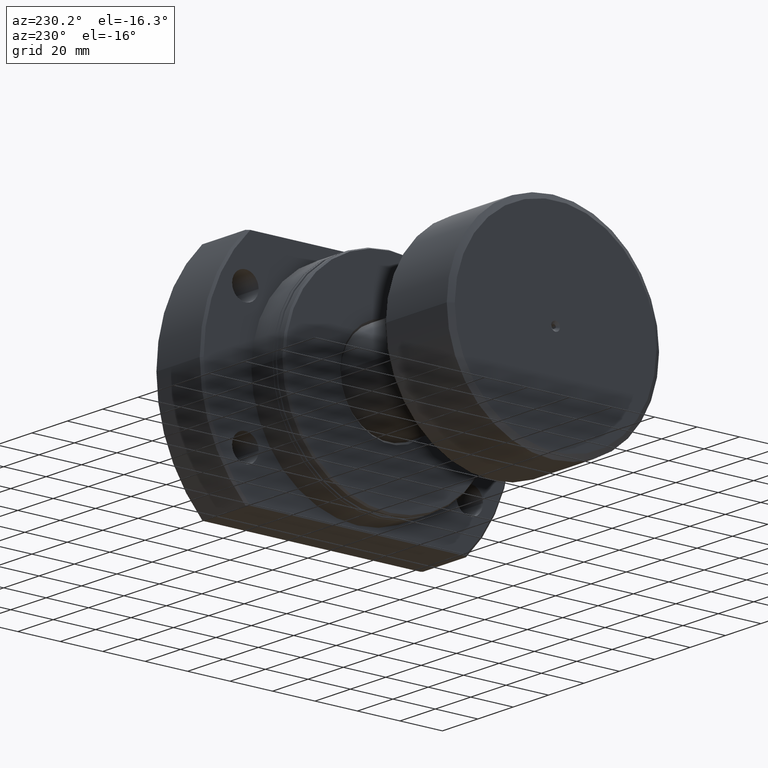
[diagram: clean part render]
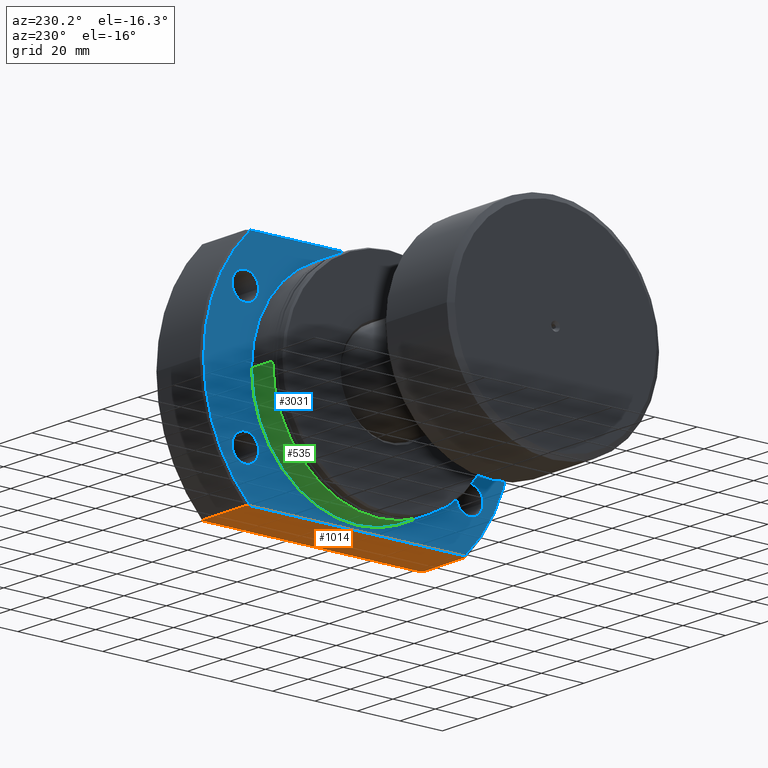
[diagram: same view with three faces highlighted in distinct colors, each labeled with its STEP entity id]
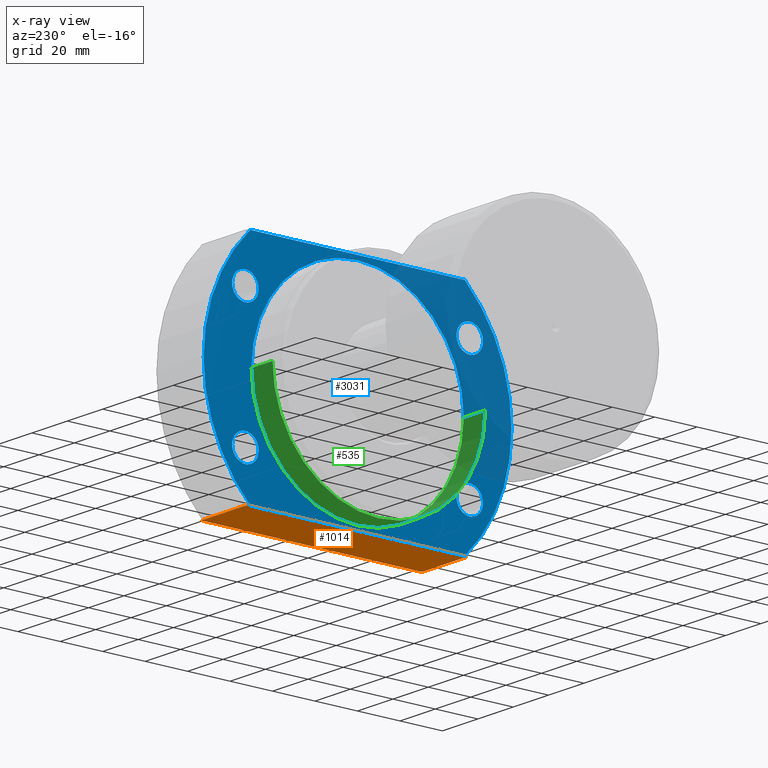
[diagram: x-ray of the same camera — body ghosted, the three highlighted faces saturated]
A machine part, auxiliary view with three faces highlighted in distinct colors.
The next image is the same camera in x-ray (body ghosted, the three faces saturated) — at least one of them is partly hidden behind the body in this view.
Their STEP definitions:

[orange] entity #1014 — the highlighted planar face has unit normal (0, 0, 1).
#72 = DIRECTION ( 'NONE',  ( 1.000000000000000000, -2.886466111666351885E-14, -0.000000000000000000 ) ) ;
#127 = VERTEX_POINT ( 'NONE', #3254 ) ;
#150 = ORIENTED_EDGE ( 'NONE', *, *, #1788, .F. ) ;
#172 = VERTEX_POINT ( 'NONE', #480 ) ;
#180 = EDGE_CURVE ( 'NONE', #1849, #777, #822, .T. ) ;
#188 = LINE ( 'NONE', #3641, #1297 ) ;
#190 = CARTESIAN_POINT ( 'NONE',  ( 19.16504727819932796, -51.47073513786417465, -52.00000000000000000 ) ) ;
#406 = LINE ( 'NONE', #700, #1348 ) ;
#417 = ORIENTED_EDGE ( 'NONE', *, *, #1956, .T. ) ;
#480 = CARTESIAN_POINT ( 'NONE',  ( 44.00000000000007816, -51.94468211472653252, -51.99999999999999289 ) ) ;
#528 = CARTESIAN_POINT ( 'NONE',  ( 19.16511005864717632, 51.47082397011282495, -52.00000000000000000 ) ) ;
#580 = CARTESIAN_POINT ( 'NONE',  ( 18.50000000000000355, 50.51979809935892263, -52.00000000000000000 ) ) ;
#696 = CARTESIAN_POINT ( 'NONE',  ( -6.175615574477433256E-13, 51.94468211472779728, -52.00000000000000000 ) ) ;
#700 = CARTESIAN_POINT ( 'NONE',  ( 18.50000000000000711, -50.00000000000000000, -52.00000000000000000 ) ) ;
#777 = VERTEX_POINT ( 'NONE', #1433 ) ;
#822 = LINE ( 'NONE', #2462, #1808 ) ;
#847 = VERTEX_POINT ( 'NONE', #1472 ) ;
#876 = CARTESIAN_POINT ( 'NONE',  ( 44.49999999999999289, -51.23475382979800230, -52.00000000000000000 ) ) ;
#883 = EDGE_CURVE ( 'NONE', #777, #127, #3304, .T. ) ;
#897 = ORIENTED_EDGE ( 'NONE', *, *, #3483, .F. ) ;
#932 = VECTOR ( 'NONE', #72, 1000.000000000000000 ) ;
#971 = DIRECTION ( 'NONE',  ( 0.000000000000000000, 0.000000000000000000, 1.000000000000000000 ) ) ;
#1014 = ADVANCED_FACE ( 'NONE', ( #3021 ), #3518, .F. ) ;
#1126 = VERTEX_POINT ( 'NONE', #3041 ) ;
#1129 = EDGE_CURVE ( 'NONE', #1126, #3136, #2027, .T. ) ;
#1297 = VECTOR ( 'NONE', #2750, 1000.000000000000000 ) ;
#1348 = VECTOR ( 'NONE', #1838, 1000.000000000000000 ) ;
#1387 = CARTESIAN_POINT ( 'NONE',  ( 18.50000000000000711, -50.51979809935892263, -52.00000000000000000 ) ) ;
#1433 = CARTESIAN_POINT ( 'NONE',  ( 44.49999999999998579, 51.23475382979800941, -52.00000000000000000 ) ) ;
#1472 = CARTESIAN_POINT ( 'NONE',  ( 19.49999999999999289, -51.94468211472582198, -51.99999999999999289 ) ) ;
#1513 = LINE ( 'NONE', #3248, #932 ) ;
#1577 = VERTEX_POINT ( 'NONE', #3349 ) ;
#1631 = DIRECTION ( 'NONE',  ( -5.504030557965630938E-17, 1.000000000000000000, -0.000000000000000000 ) ) ;
#1633 = ORIENTED_EDGE ( 'NONE', *, *, #883, .F. ) ;
#1696 = EDGE_CURVE ( 'NONE', #1577, #847, #2068, .T. ) ;
#1788 = EDGE_CURVE ( 'NONE', #172, #1849, #2725, .T. ) ;
#1795 = CARTESIAN_POINT ( 'NONE',  ( 44.00000000000007816, 51.94468211472651831, -52.00000000000000711 ) ) ;
#1808 = VECTOR ( 'NONE', #1631, 1000.000000000000000 ) ;
#1838 = DIRECTION ( 'NONE',  ( 5.504030557965630938E-17, -1.000000000000000000, 0.000000000000000000 ) ) ;
#1849 = VERTEX_POINT ( 'NONE', #3175 ) ;
#1851 = DIRECTION ( 'NONE',  ( 1.000000000000000000, 0.000000000000000000, -0.000000000000000000 ) ) ;
#1913 = CARTESIAN_POINT ( 'NONE',  ( 19.49999999999999289, 51.94468211472722885, -52.00000000000000711 ) ) ;
#1956 = EDGE_CURVE ( 'NONE', #1126, #127, #1513, .T. ) ;
#2006 = ORIENTED_EDGE ( 'NONE', *, *, #1696, .F. ) ;
#2019 = CARTESIAN_POINT ( 'NONE',  ( 44.00000000000007816, -51.94468211472653252, -51.99999999999999289 ) ) ;
#2027 = B_SPLINE_CURVE_WITH_KNOTS ( 'NONE', 3,
 ( #1913, #528, #3372, #2205 ),
 .UNSPECIFIED., .F., .F.,
 ( 4, 4 ),
 ( 0.08127662313014138995, 0.08302041353061251350 ),
 .UNSPECIFIED. ) ;
#2068 = B_SPLINE_CURVE_WITH_KNOTS ( 'NONE', 3,
 ( #1387, #2177, #190, #3385 ),
 .UNSPECIFIED., .F., .F.,
 ( 4, 4 ),
 ( 0.1939618309439029020, 0.1957182682511685867 ),
 .UNSPECIFIED. ) ;
#2177 = CARTESIAN_POINT ( 'NONE',  ( 18.83168451724294101, -50.99579223244747794, -52.00000000000000000 ) ) ;
#2205 = CARTESIAN_POINT ( 'NONE',  ( 18.50000000000000355, 50.51979809935892263, -52.00000000000000000 ) ) ;
#2287 = AXIS2_PLACEMENT_3D ( 'NONE', #696, #971, #1851 ) ;
#2313 = CARTESIAN_POINT ( 'NONE',  ( 44.16706589136729377, 51.70828942705217912, -52.00000000000000000 ) ) ;
#2462 = CARTESIAN_POINT ( 'NONE',  ( 44.50000000000000000, -73.00000000000001421, -52.00000000000000000 ) ) ;
#2484 = EDGE_CURVE ( 'NONE', #3136, #1577, #406, .T. ) ;
#2575 = CARTESIAN_POINT ( 'NONE',  ( 44.33372060663040060, -51.47167105509207374, -52.00000000000000000 ) ) ;
#2692 = ORIENTED_EDGE ( 'NONE', *, *, #180, .F. ) ;
#2725 = B_SPLINE_CURVE_WITH_KNOTS ( 'NONE', 3,
 ( #2019, #3452, #2575, #876 ),
 .UNSPECIFIED., .F., .F.,
 ( 4, 4 ),
 ( 0.08127369397833110465, 0.08214353487046274771 ),
 .UNSPECIFIED. ) ;
#2750 = DIRECTION ( 'NONE',  ( 1.000000000000000000, -2.886466111666351885E-14, -0.000000000000000000 ) ) ;
#2832 = ORIENTED_EDGE ( 'NONE', *, *, #1129, .F. ) ;
#2837 = EDGE_LOOP ( 'NONE', ( #417, #1633, #2692, #150, #897, #2006, #3444, #2832 ) ) ;
#2889 = CARTESIAN_POINT ( 'NONE',  ( 44.33373614671723573, 51.47164891335710735, -52.00000000000000000 ) ) ;
#3021 = FACE_OUTER_BOUND ( 'NONE', #2837, .T. ) ;
#3041 = CARTESIAN_POINT ( 'NONE',  ( 19.49999999999999289, 51.94468211472722885, -52.00000000000000711 ) ) ;
#3136 = VERTEX_POINT ( 'NONE', #580 ) ;
#3175 = CARTESIAN_POINT ( 'NONE',  ( 44.49999999999999289, -51.23475382979800230, -52.00000000000000000 ) ) ;
#3248 = CARTESIAN_POINT ( 'NONE',  ( -6.175615574477433256E-13, 51.94468211472779018, -52.00000000000000711 ) ) ;
#3254 = CARTESIAN_POINT ( 'NONE',  ( 44.00000000000007816, 51.94468211472651831, -52.00000000000000711 ) ) ;
#3304 = B_SPLINE_CURVE_WITH_KNOTS ( 'NONE', 3,
 ( #3406, #2889, #2313, #1795 ),
 .UNSPECIFIED., .F., .F.,
 ( 4, 4 ),
 ( 0.1948392449670404702, 0.1957153114758534707 ),
 .UNSPECIFIED. ) ;
#3349 = CARTESIAN_POINT ( 'NONE',  ( 18.50000000000000711, -50.51979809935892263, -52.00000000000000000 ) ) ;
#3372 = CARTESIAN_POINT ( 'NONE',  ( 18.83174783879943703, 50.99588310400711322, -52.00000000000000000 ) ) ;
#3385 = CARTESIAN_POINT ( 'NONE',  ( 19.49999999999999289, -51.94468211472582198, -51.99999999999999289 ) ) ;
#3406 = CARTESIAN_POINT ( 'NONE',  ( 44.49999999999998579, 51.23475382979800941, -52.00000000000000000 ) ) ;
#3444 = ORIENTED_EDGE ( 'NONE', *, *, #2484, .F. ) ;
#3452 = CARTESIAN_POINT ( 'NONE',  ( 44.16705041831157530, -51.70831132091211657, -52.00000000000000000 ) ) ;
#3483 = EDGE_CURVE ( 'NONE', #847, #172, #188, .T. ) ;
#3518 = PLANE ( 'NONE',  #2287 ) ;
#3641 = CARTESIAN_POINT ( 'NONE',  ( -3.615163723935665985E-12, -51.94468211472526065, -51.99999999999999289 ) ) ;

[blue] entity #3031 — the highlighted planar face has unit normal (1, 0, 0).
#41 = DIRECTION ( 'NONE',  ( -4.785444071660162135E-17, 1.000000000000000000, 0.000000000000000000 ) ) ;
#58 = CARTESIAN_POINT ( 'NONE',  ( 18.50000000000000355, -50.00000000000000000, 6.123233995736766085E-15 ) ) ;
#106 = VERTEX_POINT ( 'NONE', #58 ) ;
#129 = CARTESIAN_POINT ( 'NONE',  ( 18.50000000000000711, -52.85000000000052722, 30.50000000000000000 ) ) ;
#147 = CARTESIAN_POINT ( 'NONE',  ( 18.50000000000000000, 46.59999999999947562, 30.50000000000000000 ) ) ;
#163 = CIRCLE ( 'NONE', #2961, 6.249999999999998224 ) ;
#174 = CARTESIAN_POINT ( 'NONE',  ( 18.50000000000000711, -52.85000000000053433, -30.50000000000000000 ) ) ;
#179 = FACE_BOUND ( 'NONE', #2694, .T. ) ;
#231 = CARTESIAN_POINT ( 'NONE',  ( 18.50000000000000711, -59.10000000000052722, 30.50000000000000000 ) ) ;
#234 = CARTESIAN_POINT ( 'NONE',  ( 18.50000000000000711, -46.60000000000053433, -30.50000000000000000 ) ) ;
#254 = VERTEX_POINT ( 'NONE', #234 ) ;
#265 = EDGE_CURVE ( 'NONE', #672, #2146, #2571, .T. ) ;
#271 = CIRCLE ( 'NONE', #2181, 50.00000000000000000 ) ;
#282 = AXIS2_PLACEMENT_3D ( 'NONE', #174, #1368, #798 ) ;
#292 = EDGE_CURVE ( 'NONE', #254, #1874, #3525, .T. ) ;
#293 = ORIENTED_EDGE ( 'NONE', *, *, #3464, .T. ) ;
#354 = DIRECTION ( 'NONE',  ( 1.000000000000000000, 5.504030557965630938E-17, -0.000000000000000000 ) ) ;
#377 = CIRCLE ( 'NONE', #1399, 72.49999999999992895 ) ;
#382 = ORIENTED_EDGE ( 'NONE', *, *, #3356, .F. ) ;
#386 = CIRCLE ( 'NONE', #1056, 6.249999999999998224 ) ;
#387 = EDGE_CURVE ( 'NONE', #2994, #2361, #2761, .T. ) ;
#393 = DIRECTION ( 'NONE',  ( 1.000000000000000000, 5.504030557965630938E-17, -0.000000000000000000 ) ) ;
#406 = LINE ( 'NONE', #700, #1348 ) ;
#466 = EDGE_LOOP ( 'NONE', ( #2817, #2847 ) ) ;
#503 = AXIS2_PLACEMENT_3D ( 'NONE', #2299, #3432, #892 ) ;
#544 = PLANE ( 'NONE',  #1583 ) ;
#580 = CARTESIAN_POINT ( 'NONE',  ( 18.50000000000000355, 50.51979809935892263, -52.00000000000000000 ) ) ;
#588 = AXIS2_PLACEMENT_3D ( 'NONE', #1300, #393, #2373 ) ;
#602 = CARTESIAN_POINT ( 'NONE',  ( 18.50000000000000000, 46.59999999999946851, -30.50000000000000000 ) ) ;
#604 = VERTEX_POINT ( 'NONE', #147 ) ;
#672 = VERTEX_POINT ( 'NONE', #1667 ) ;
#700 = CARTESIAN_POINT ( 'NONE',  ( 18.50000000000000711, -50.00000000000000000, -52.00000000000000000 ) ) ;
#766 = EDGE_LOOP ( 'NONE', ( #3115, #1253 ) ) ;
#767 = CIRCLE ( 'NONE', #2133, 6.249999999999998224 ) ;
#771 = FACE_BOUND ( 'NONE', #466, .T. ) ;
#783 = CARTESIAN_POINT ( 'NONE',  ( 18.50000000000000000, 52.84999999999947562, 30.50000000000000000 ) ) ;
#798 = DIRECTION ( 'NONE',  ( 0.000000000000000000, 1.000000000000000000, 0.000000000000000000 ) ) ;
#873 = DIRECTION ( 'NONE',  ( 1.000000000000000000, 5.504030557965630938E-17, -0.000000000000000000 ) ) ;
#886 = CIRCLE ( 'NONE', #3488, 6.249999999999998224 ) ;
#892 = DIRECTION ( 'NONE',  ( -4.785444071660162135E-17, 1.000000000000000000, 0.000000000000000000 ) ) ;
#911 = CARTESIAN_POINT ( 'NONE',  ( 18.49999999999999645, 50.00000000000000000, 0.000000000000000000 ) ) ;
#972 = AXIS2_PLACEMENT_3D ( 'NONE', #3642, #3587, #1040 ) ;
#985 = LINE ( 'NONE', #2919, #1571 ) ;
#1040 = DIRECTION ( 'NONE',  ( 0.000000000000000000, 1.000000000000000000, 0.000000000000000000 ) ) ;
#1056 = AXIS2_PLACEMENT_3D ( 'NONE', #129, #2371, #3508 ) ;
#1069 = FACE_BOUND ( 'NONE', #3417, .T. ) ;
#1124 = DIRECTION ( 'NONE',  ( 1.000000000000000000, 5.504030557965630938E-17, -0.000000000000000000 ) ) ;
#1140 = CARTESIAN_POINT ( 'NONE',  ( 18.50000000000000000, 52.84999999999946851, -30.50000000000000000 ) ) ;
#1231 = EDGE_LOOP ( 'NONE', ( #3076, #2559 ) ) ;
#1253 = ORIENTED_EDGE ( 'NONE', *, *, #3187, .T. ) ;
#1261 = VERTEX_POINT ( 'NONE', #2324 ) ;
#1288 = AXIS2_PLACEMENT_3D ( 'NONE', #1671, #873, #1683 ) ;
#1300 = CARTESIAN_POINT ( 'NONE',  ( 18.50000000000000711, 1.018245653223641951E-15, 0.000000000000000000 ) ) ;
#1335 = CARTESIAN_POINT ( 'NONE',  ( 18.50000000000000355, 72.49999999999992895, 0.000000000000000000 ) ) ;
#1348 = VECTOR ( 'NONE', #1838, 1000.000000000000000 ) ;
#1368 = DIRECTION ( 'NONE',  ( 1.000000000000000000, 5.504030557965630938E-17, -0.000000000000000000 ) ) ;
#1376 = VERTEX_POINT ( 'NONE', #602 ) ;
#1399 = AXIS2_PLACEMENT_3D ( 'NONE', #1746, #1406, #41 ) ;
#1406 = DIRECTION ( 'NONE',  ( 1.000000000000000000, 5.504030557965630938E-17, -0.000000000000000000 ) ) ;
#1442 = DIRECTION ( 'NONE',  ( 0.000000000000000000, 1.000000000000000000, 0.000000000000000000 ) ) ;
#1454 = EDGE_CURVE ( 'NONE', #2361, #1261, #985, .T. ) ;
#1571 = VECTOR ( 'NONE', #3550, 1000.000000000000000 ) ;
#1577 = VERTEX_POINT ( 'NONE', #3349 ) ;
#1583 = AXIS2_PLACEMENT_3D ( 'NONE', #3314, #1124, #3352 ) ;
#1658 = FACE_BOUND ( 'NONE', #766, .T. ) ;
#1667 = CARTESIAN_POINT ( 'NONE',  ( 18.50000000000000711, -46.60000000000052722, 30.50000000000000000 ) ) ;
#1671 = CARTESIAN_POINT ( 'NONE',  ( 18.50000000000000000, 52.84999999999946851, -30.50000000000000000 ) ) ;
#1683 = DIRECTION ( 'NONE',  ( 0.000000000000000000, 1.000000000000000000, 0.000000000000000000 ) ) ;
#1723 = EDGE_CURVE ( 'NONE', #1261, #1577, #377, .T. ) ;
#1746 = CARTESIAN_POINT ( 'NONE',  ( 18.50000000000000711, 1.018245653223641951E-15, 0.000000000000000000 ) ) ;
#1831 = EDGE_LOOP ( 'NONE', ( #3597, #3029, #382, #1877, #2127 ) ) ;
#1838 = DIRECTION ( 'NONE',  ( 5.504030557965630938E-17, -1.000000000000000000, 0.000000000000000000 ) ) ;
#1843 = CARTESIAN_POINT ( 'NONE',  ( 18.50000000000000000, 1.018245653223641557E-15, 0.000000000000000000 ) ) ;
#1874 = VERTEX_POINT ( 'NONE', #2301 ) ;
#1877 = ORIENTED_EDGE ( 'NONE', *, *, #2484, .T. ) ;
#1891 = AXIS2_PLACEMENT_3D ( 'NONE', #1843, #354, #2681 ) ;
#1900 = CIRCLE ( 'NONE', #282, 6.249999999999998224 ) ;
#1902 = DIRECTION ( 'NONE',  ( 0.000000000000000000, 1.000000000000000000, 0.000000000000000000 ) ) ;
#1928 = EDGE_CURVE ( 'NONE', #3261, #106, #3609, .T. ) ;
#1940 = CARTESIAN_POINT ( 'NONE',  ( 18.50000000000000711, -52.85000000000053433, -30.50000000000000000 ) ) ;
#1992 = ORIENTED_EDGE ( 'NONE', *, *, #2062, .T. ) ;
#2015 = EDGE_CURVE ( 'NONE', #2146, #672, #386, .T. ) ;
#2062 = EDGE_CURVE ( 'NONE', #106, #3261, #271, .T. ) ;
#2095 = CARTESIAN_POINT ( 'NONE',  ( 18.50000000000000000, 59.09999999999946851, -30.50000000000000000 ) ) ;
#2127 = ORIENTED_EDGE ( 'NONE', *, *, #1723, .F. ) ;
#2133 = AXIS2_PLACEMENT_3D ( 'NONE', #1140, #3469, #3455 ) ;
#2135 = CARTESIAN_POINT ( 'NONE',  ( 18.50000000000000355, 50.51979809935892263, 52.00000000000000000 ) ) ;
#2146 = VERTEX_POINT ( 'NONE', #231 ) ;
#2166 = AXIS2_PLACEMENT_3D ( 'NONE', #1940, #3310, #2249 ) ;
#2181 = AXIS2_PLACEMENT_3D ( 'NONE', #2481, #3362, #3625 ) ;
#2182 = ORIENTED_EDGE ( 'NONE', *, *, #292, .T. ) ;
#2246 = DIRECTION ( 'NONE',  ( 1.000000000000000000, 5.504030557965630938E-17, -0.000000000000000000 ) ) ;
#2249 = DIRECTION ( 'NONE',  ( 0.000000000000000000, 1.000000000000000000, 0.000000000000000000 ) ) ;
#2269 = CARTESIAN_POINT ( 'NONE',  ( 18.50000000000000000, 52.84999999999947562, 30.50000000000000000 ) ) ;
#2276 = EDGE_CURVE ( 'NONE', #1376, #2477, #2890, .T. ) ;
#2299 = CARTESIAN_POINT ( 'NONE',  ( 18.50000000000000711, 1.018245653223641951E-15, 0.000000000000000000 ) ) ;
#2301 = CARTESIAN_POINT ( 'NONE',  ( 18.50000000000000711, -59.10000000000053433, -30.50000000000000000 ) ) ;
#2324 = CARTESIAN_POINT ( 'NONE',  ( 18.50000000000000711, -50.51979809935892263, 52.00000000000000000 ) ) ;
#2361 = VERTEX_POINT ( 'NONE', #2135 ) ;
#2371 = DIRECTION ( 'NONE',  ( 1.000000000000000000, 5.504030557965630938E-17, -0.000000000000000000 ) ) ;
#2373 = DIRECTION ( 'NONE',  ( -4.785444071660162135E-17, 1.000000000000000000, 0.000000000000000000 ) ) ;
#2441 = VERTEX_POINT ( 'NONE', #2665 ) ;
#2477 = VERTEX_POINT ( 'NONE', #2095 ) ;
#2481 = CARTESIAN_POINT ( 'NONE',  ( 18.50000000000000000, 1.018245653223641557E-15, 0.000000000000000000 ) ) ;
#2484 = EDGE_CURVE ( 'NONE', #3136, #1577, #406, .T. ) ;
#2489 = FACE_OUTER_BOUND ( 'NONE', #1831, .T. ) ;
#2533 = ORIENTED_EDGE ( 'NONE', *, *, #1928, .T. ) ;
#2559 = ORIENTED_EDGE ( 'NONE', *, *, #2015, .T. ) ;
#2571 = CIRCLE ( 'NONE', #972, 6.249999999999998224 ) ;
#2665 = CARTESIAN_POINT ( 'NONE',  ( 18.50000000000000000, 59.09999999999947562, 30.50000000000000000 ) ) ;
#2681 = DIRECTION ( 'NONE',  ( -6.938893903907228378E-17, 1.000000000000000000, 0.000000000000000000 ) ) ;
#2694 = EDGE_LOOP ( 'NONE', ( #2182, #293 ) ) ;
#2761 = CIRCLE ( 'NONE', #503, 72.49999999999992895 ) ;
#2817 = ORIENTED_EDGE ( 'NONE', *, *, #3170, .T. ) ;
#2847 = ORIENTED_EDGE ( 'NONE', *, *, #2276, .T. ) ;
#2890 = CIRCLE ( 'NONE', #1288, 6.249999999999998224 ) ;
#2919 = CARTESIAN_POINT ( 'NONE',  ( 18.50000000000000711, -50.00000000000000000, 52.00000000000000000 ) ) ;
#2961 = AXIS2_PLACEMENT_3D ( 'NONE', #783, #2246, #1902 ) ;
#2994 = VERTEX_POINT ( 'NONE', #1335 ) ;
#3029 = ORIENTED_EDGE ( 'NONE', *, *, #387, .F. ) ;
#3031 = ADVANCED_FACE ( 'NONE', ( #1658, #3646, #179, #771, #1069, #2489 ), #544, .F. ) ;
#3076 = ORIENTED_EDGE ( 'NONE', *, *, #265, .T. ) ;
#3115 = ORIENTED_EDGE ( 'NONE', *, *, #3504, .T. ) ;
#3136 = VERTEX_POINT ( 'NONE', #580 ) ;
#3170 = EDGE_CURVE ( 'NONE', #2477, #1376, #767, .T. ) ;
#3187 = EDGE_CURVE ( 'NONE', #604, #2441, #886, .T. ) ;
#3195 = CIRCLE ( 'NONE', #588, 72.49999999999992895 ) ;
#3261 = VERTEX_POINT ( 'NONE', #911 ) ;
#3310 = DIRECTION ( 'NONE',  ( 1.000000000000000000, 5.504030557965630938E-17, -0.000000000000000000 ) ) ;
#3314 = CARTESIAN_POINT ( 'NONE',  ( 18.50000000000000711, -50.00000000000000000, 0.000000000000000000 ) ) ;
#3349 = CARTESIAN_POINT ( 'NONE',  ( 18.50000000000000711, -50.51979809935892263, -52.00000000000000000 ) ) ;
#3352 = DIRECTION ( 'NONE',  ( -5.504030557965630938E-17, 1.000000000000000000, 0.000000000000000000 ) ) ;
#3356 = EDGE_CURVE ( 'NONE', #3136, #2994, #3195, .T. ) ;
#3362 = DIRECTION ( 'NONE',  ( 1.000000000000000000, 5.504030557965630938E-17, -0.000000000000000000 ) ) ;
#3417 = EDGE_LOOP ( 'NONE', ( #2533, #1992 ) ) ;
#3432 = DIRECTION ( 'NONE',  ( 1.000000000000000000, 5.504030557965630938E-17, -0.000000000000000000 ) ) ;
#3437 = DIRECTION ( 'NONE',  ( 1.000000000000000000, 5.504030557965630938E-17, -0.000000000000000000 ) ) ;
#3455 = DIRECTION ( 'NONE',  ( 0.000000000000000000, 1.000000000000000000, 0.000000000000000000 ) ) ;
#3464 = EDGE_CURVE ( 'NONE', #1874, #254, #1900, .T. ) ;
#3469 = DIRECTION ( 'NONE',  ( 1.000000000000000000, 5.504030557965630938E-17, -0.000000000000000000 ) ) ;
#3488 = AXIS2_PLACEMENT_3D ( 'NONE', #2269, #3437, #1442 ) ;
#3504 = EDGE_CURVE ( 'NONE', #2441, #604, #163, .T. ) ;
#3508 = DIRECTION ( 'NONE',  ( 0.000000000000000000, 1.000000000000000000, 0.000000000000000000 ) ) ;
#3525 = CIRCLE ( 'NONE', #2166, 6.249999999999998224 ) ;
#3550 = DIRECTION ( 'NONE',  ( 5.504030557965630938E-17, -1.000000000000000000, 0.000000000000000000 ) ) ;
#3587 = DIRECTION ( 'NONE',  ( 1.000000000000000000, 5.504030557965630938E-17, -0.000000000000000000 ) ) ;
#3597 = ORIENTED_EDGE ( 'NONE', *, *, #1454, .F. ) ;
#3609 = CIRCLE ( 'NONE', #1891, 50.00000000000000000 ) ;
#3625 = DIRECTION ( 'NONE',  ( -6.938893903907228378E-17, 1.000000000000000000, 0.000000000000000000 ) ) ;
#3642 = CARTESIAN_POINT ( 'NONE',  ( 18.50000000000000711, -52.85000000000052722, 30.50000000000000000 ) ) ;
#3646 = FACE_BOUND ( 'NONE', #1231, .T. ) ;

[green] entity #535 — the highlighted cylindrical surface (partial cylindrical patch) has radius 50 mm, axis along (1, 0, 0).
#53 = DIRECTION ( 'NONE',  ( 0.000000000000000000, 1.000000000000000000, 0.000000000000000000 ) ) ;
#58 = CARTESIAN_POINT ( 'NONE',  ( 18.50000000000000355, -50.00000000000000000, 6.123233995736766085E-15 ) ) ;
#106 = VERTEX_POINT ( 'NONE', #58 ) ;
#169 = CARTESIAN_POINT ( 'NONE',  ( 44.50000000000000000, 2.449293598294705724E-15, 0.000000000000000000 ) ) ;
#230 = EDGE_CURVE ( 'NONE', #2903, #3261, #3348, .T. ) ;
#271 = CIRCLE ( 'NONE', #2181, 50.00000000000000000 ) ;
#363 = CARTESIAN_POINT ( 'NONE',  ( 44.50000000000000000, -50.00000000000000000, 6.123233995736766085E-15 ) ) ;
#535 = ADVANCED_FACE ( 'NONE', ( #927 ), #2745, .T. ) ;
#702 = CIRCLE ( 'NONE', #1720, 50.00000000000000000 ) ;
#853 = EDGE_CURVE ( 'NONE', #1581, #106, #1540, .T. ) ;
#911 = CARTESIAN_POINT ( 'NONE',  ( 18.49999999999999645, 50.00000000000000000, 0.000000000000000000 ) ) ;
#922 = EDGE_LOOP ( 'NONE', ( #3293, #3179, #2703, #2622 ) ) ;
#923 = AXIS2_PLACEMENT_3D ( 'NONE', #169, #2085, #53 ) ;
#927 = FACE_OUTER_BOUND ( 'NONE', #922, .T. ) ;
#1157 = VECTOR ( 'NONE', #2157, 1000.000000000000000 ) ;
#1540 = LINE ( 'NONE', #363, #2938 ) ;
#1581 = VERTEX_POINT ( 'NONE', #1962 ) ;
#1591 = DIRECTION ( 'NONE',  ( -5.204170427930421283E-17, 1.000000000000000000, 0.000000000000000000 ) ) ;
#1720 = AXIS2_PLACEMENT_3D ( 'NONE', #3586, #2482, #1591 ) ;
#1848 = CARTESIAN_POINT ( 'NONE',  ( 6.499999999999787725, 50.00000000000000000, 0.000000000000000000 ) ) ;
#1962 = CARTESIAN_POINT ( 'NONE',  ( 6.499999999999793054, -50.00000000000000000, 6.123233995736766085E-15 ) ) ;
#2062 = EDGE_CURVE ( 'NONE', #106, #3261, #271, .T. ) ;
#2085 = DIRECTION ( 'NONE',  ( 1.000000000000000000, 5.504030557965630938E-17, -0.000000000000000000 ) ) ;
#2157 = DIRECTION ( 'NONE',  ( 1.000000000000000000, 5.504030557965630938E-17, -0.000000000000000000 ) ) ;
#2181 = AXIS2_PLACEMENT_3D ( 'NONE', #2481, #3362, #3625 ) ;
#2212 = CARTESIAN_POINT ( 'NONE',  ( 44.50000000000000000, 50.00000000000000000, 0.000000000000000000 ) ) ;
#2481 = CARTESIAN_POINT ( 'NONE',  ( 18.50000000000000000, 1.018245653223641557E-15, 0.000000000000000000 ) ) ;
#2482 = DIRECTION ( 'NONE',  ( 1.000000000000000000, 5.504030557965630938E-17, -0.000000000000000000 ) ) ;
#2622 = ORIENTED_EDGE ( 'NONE', *, *, #2062, .F. ) ;
#2703 = ORIENTED_EDGE ( 'NONE', *, *, #230, .T. ) ;
#2745 = CYLINDRICAL_SURFACE ( 'NONE', #923, 50.00000000000000000 ) ;
#2903 = VERTEX_POINT ( 'NONE', #1848 ) ;
#2938 = VECTOR ( 'NONE', #3167, 1000.000000000000000 ) ;
#3167 = DIRECTION ( 'NONE',  ( 1.000000000000000000, 5.504030557965630938E-17, -0.000000000000000000 ) ) ;
#3179 = ORIENTED_EDGE ( 'NONE', *, *, #3582, .T. ) ;
#3261 = VERTEX_POINT ( 'NONE', #911 ) ;
#3293 = ORIENTED_EDGE ( 'NONE', *, *, #853, .F. ) ;
#3348 = LINE ( 'NONE', #2212, #1157 ) ;
#3362 = DIRECTION ( 'NONE',  ( 1.000000000000000000, 5.504030557965630938E-17, -0.000000000000000000 ) ) ;
#3582 = EDGE_CURVE ( 'NONE', #1581, #2903, #702, .T. ) ;
#3586 = CARTESIAN_POINT ( 'NONE',  ( 6.499999999999790390, 3.577619862677545540E-16, 0.000000000000000000 ) ) ;
#3625 = DIRECTION ( 'NONE',  ( -6.938893903907228378E-17, 1.000000000000000000, 0.000000000000000000 ) ) ;